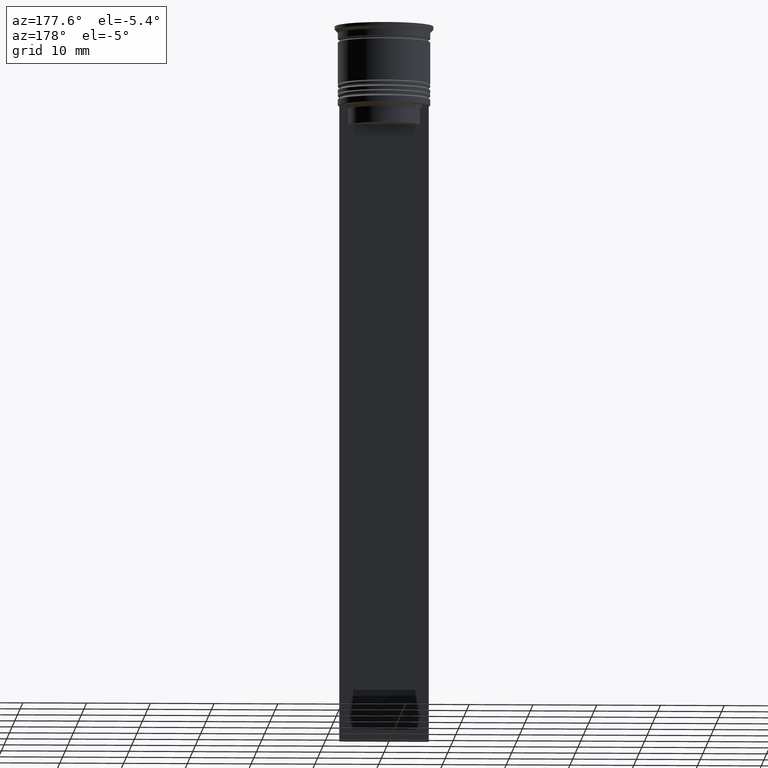
[diagram: clean part render]
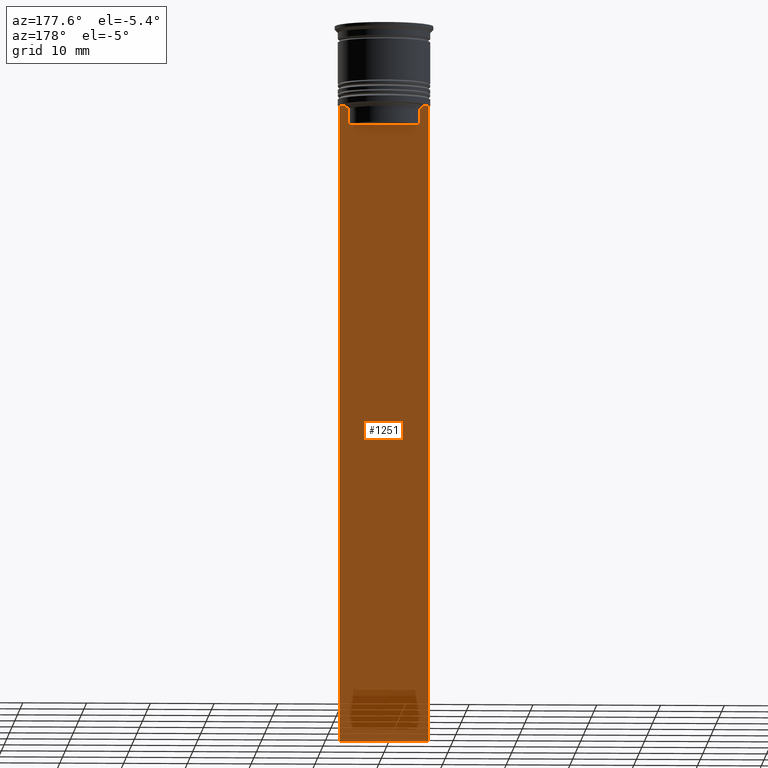
[diagram: same view with one face highlighted and labeled with its STEP entity id]
A machine part, auxiliary view. The second image highlights one B-rep face of the part: STEP entity #1251.
In plain terms, the highlighted planar face has unit normal (0, -1, -0).
Its self-contained STEP definition (entity closure, byte-faithful):
#27 = ORIENTED_EDGE ( 'NONE', *, *, #544, .T. ) ;
#85 = CARTESIAN_POINT ( 'NONE',  ( -6.129641098791995368, 0.4999999999999978351, -12.50000000000000000 ) ) ;
#102 = ORIENTED_EDGE ( 'NONE', *, *, #816, .F. ) ;
#148 = ORIENTED_EDGE ( 'NONE', *, *, #1028, .T. ) ;
#182 = AXIS2_PLACEMENT_3D ( 'NONE', #1326, #2005, #1634 ) ;
#212 = VERTEX_POINT ( 'NONE', #296 ) ;
#296 = CARTESIAN_POINT ( 'NONE',  ( -5.627832620112292794, 0.4999999999999978351, -13.00000000000000000 ) ) ;
#307 = B_SPLINE_CURVE_WITH_KNOTS ( 'NONE', 3,
 ( #2107, #673, #1595, #2121 ),
 .UNSPECIFIED., .F., .F.,
 ( 4, 4 ),
 ( 0.01045365750109871796, 0.01116204421161398619 ),
 .UNSPECIFIED. ) ;
#405 = CARTESIAN_POINT ( 'NONE',  ( -6.999999999999987566, 0.4999999999999980571, -12.50000000000000000 ) ) ;
#412 = CARTESIAN_POINT ( 'NONE',  ( 5.795128760752291441, 0.4999999999999978351, -12.83336023406855020 ) ) ;
#424 = VERTEX_POINT ( 'NONE', #85 ) ;
#433 = VERTEX_POINT ( 'NONE', #1524 ) ;
#447 = VERTEX_POINT ( 'NONE', #1339 ) ;
#454 = ORIENTED_EDGE ( 'NONE', *, *, #1538, .T. ) ;
#495 = LINE ( 'NONE', #1940, #2186 ) ;
#534 = EDGE_CURVE ( 'NONE', #447, #792, #495, .T. ) ;
#544 = EDGE_CURVE ( 'NONE', #212, #1795, #1801, .T. ) ;
#559 = EDGE_CURVE ( 'NONE', #2180, #735, #1033, .T. ) ;
#587 = CARTESIAN_POINT ( 'NONE',  ( 7.000000000000012434, 0.4999999999999978351, 1.535668847618198329 ) ) ;
#609 = LINE ( 'NONE', #1505, #2260 ) ;
#648 = CARTESIAN_POINT ( 'NONE',  ( 5.627832620112292794, 0.4999999999999978351, -13.00000000000000000 ) ) ;
#673 = CARTESIAN_POINT ( 'NONE',  ( -5.962396146966409738, 0.4999999999999978351, -12.66669130573587054 ) ) ;
#735 = VERTEX_POINT ( 'NONE', #1630 ) ;
#779 = DIRECTION ( 'NONE',  ( 0.000000000000000000, 0.000000000000000000, -1.000000000000000000 ) ) ;
#792 = VERTEX_POINT ( 'NONE', #2245 ) ;
#816 = EDGE_CURVE ( 'NONE', #1508, #433, #609, .T. ) ;
#834 = EDGE_CURVE ( 'NONE', #1508, #424, #960, .T. ) ;
#868 = ORIENTED_EDGE ( 'NONE', *, *, #2062, .T. ) ;
#874 = DIRECTION ( 'NONE',  ( -1.000000000000000000, 0.000000000000000000, 0.000000000000000000 ) ) ;
#960 = LINE ( 'NONE', #1520, #2301 ) ;
#968 = EDGE_CURVE ( 'NONE', #735, #447, #1307, .T. ) ;
#1018 = ORIENTED_EDGE ( 'NONE', *, *, #2295, .T. ) ;
#1028 = EDGE_CURVE ( 'NONE', #424, #212, #307, .T. ) ;
#1033 = LINE ( 'NONE', #1443, #1810 ) ;
#1048 = ORIENTED_EDGE ( 'NONE', *, *, #834, .T. ) ;
#1100 = ORIENTED_EDGE ( 'NONE', *, *, #968, .T. ) ;
#1121 = LINE ( 'NONE', #1266, #1516 ) ;
#1146 = VECTOR ( 'NONE', #779, 1000.000000000000000 ) ;
#1151 = CARTESIAN_POINT ( 'NONE',  ( 5.962396079681187011, 0.4999999999999978351, -12.66669137279835411 ) ) ;
#1165 = DIRECTION ( 'NONE',  ( 0.000000000000000000, 0.000000000000000000, -1.000000000000000000 ) ) ;
#1173 = VECTOR ( 'NONE', #1779, 1000.000000000000000 ) ;
#1182 = LINE ( 'NONE', #587, #1146 ) ;
#1241 = DIRECTION ( 'NONE',  ( 1.000000000000000000, 0.000000000000000000, 0.000000000000000000 ) ) ;
#1251 = ADVANCED_FACE ( 'NONE', ( #2024 ), #1988, .F. ) ;
#1253 = CARTESIAN_POINT ( 'NONE',  ( 7.000000000000012434, 0.4999999999999978351, -112.5000000000000000 ) ) ;
#1266 = CARTESIAN_POINT ( 'NONE',  ( 7.000000000000012434, 0.4999999999999978351, -112.5000000000000000 ) ) ;
#1269 = CARTESIAN_POINT ( 'NONE',  ( -5.627832620112292794, 0.4999999999999978351, 0.000000000000000000 ) ) ;
#1273 = ORIENTED_EDGE ( 'NONE', *, *, #559, .T. ) ;
#1307 = B_SPLINE_CURVE_WITH_KNOTS ( 'NONE', 3,
 ( #648, #412, #1151, #1535 ),
 .UNSPECIFIED., .F., .F.,
 ( 4, 4 ),
 ( 0.02651134470867373347, 0.02721991123504337307 ),
 .UNSPECIFIED. ) ;
#1326 = CARTESIAN_POINT ( 'NONE',  ( 7.000000000000012434, 0.4999999999999978351, 1.535668847618198329 ) ) ;
#1334 = DIRECTION ( 'NONE',  ( 1.000000000000000000, 0.000000000000000000, 0.000000000000000000 ) ) ;
#1339 = CARTESIAN_POINT ( 'NONE',  ( 6.129641098791995368, 0.4999999999999978351, -12.50000000000000000 ) ) ;
#1443 = CARTESIAN_POINT ( 'NONE',  ( 5.627832620112292794, 0.4999999999999978351, 0.000000000000000000 ) ) ;
#1483 = CARTESIAN_POINT ( 'NONE',  ( 5.627832620112292794, 0.4999999999999978351, -15.50000000000000000 ) ) ;
#1484 = LINE ( 'NONE', #2201, #1552 ) ;
#1505 = CARTESIAN_POINT ( 'NONE',  ( -6.999999999999987566, 0.4999999999999978351, 1.535668847618198329 ) ) ;
#1508 = VERTEX_POINT ( 'NONE', #405 ) ;
#1516 = VECTOR ( 'NONE', #874, 1000.000000000000000 ) ;
#1520 = CARTESIAN_POINT ( 'NONE',  ( 7.000000000000012434, 0.4999999999999978351, -12.50000000000000000 ) ) ;
#1524 = CARTESIAN_POINT ( 'NONE',  ( -6.999999999999987566, 0.4999999999999978351, -112.5000000000000000 ) ) ;
#1535 = CARTESIAN_POINT ( 'NONE',  ( 6.129641098791995368, 0.4999999999999978351, -12.50000000000000000 ) ) ;
#1538 = EDGE_CURVE ( 'NONE', #1795, #2180, #1484, .T. ) ;
#1552 = VECTOR ( 'NONE', #1334, 1000.000000000000000 ) ;
#1595 = CARTESIAN_POINT ( 'NONE',  ( -5.795128834036803234, 0.4999999999999978351, -12.83336016107156574 ) ) ;
#1614 = CARTESIAN_POINT ( 'NONE',  ( -5.627832620112292794, 0.4999999999999978351, -15.50000000000000000 ) ) ;
#1630 = CARTESIAN_POINT ( 'NONE',  ( 5.627832620112292794, 0.4999999999999978351, -13.00000000000000000 ) ) ;
#1634 = DIRECTION ( 'NONE',  ( 0.000000000000000000, 0.000000000000000000, -1.000000000000000000 ) ) ;
#1655 = EDGE_LOOP ( 'NONE', ( #1048, #148, #27, #454, #1273, #1100, #1830, #1018, #868, #102 ) ) ;
#1753 = DIRECTION ( 'NONE',  ( -0.000000000000000000, -0.000000000000000000, 1.000000000000000000 ) ) ;
#1779 = DIRECTION ( 'NONE',  ( 0.000000000000000000, 0.000000000000000000, -1.000000000000000000 ) ) ;
#1795 = VERTEX_POINT ( 'NONE', #1614 ) ;
#1801 = LINE ( 'NONE', #1269, #1173 ) ;
#1810 = VECTOR ( 'NONE', #1753, 1000.000000000000000 ) ;
#1830 = ORIENTED_EDGE ( 'NONE', *, *, #534, .T. ) ;
#1940 = CARTESIAN_POINT ( 'NONE',  ( 7.000000000000012434, 0.4999999999999978351, -12.50000000000000000 ) ) ;
#1988 = PLANE ( 'NONE',  #182 ) ;
#2005 = DIRECTION ( 'NONE',  ( 0.000000000000000000, -1.000000000000000000, -0.000000000000000000 ) ) ;
#2024 = FACE_OUTER_BOUND ( 'NONE', #1655, .T. ) ;
#2062 = EDGE_CURVE ( 'NONE', #2114, #433, #1121, .T. ) ;
#2107 = CARTESIAN_POINT ( 'NONE',  ( -6.129641098791995368, 0.4999999999999978351, -12.50000000000000000 ) ) ;
#2114 = VERTEX_POINT ( 'NONE', #1253 ) ;
#2121 = CARTESIAN_POINT ( 'NONE',  ( -5.627832620112292794, 0.4999999999999978351, -13.00000000000000000 ) ) ;
#2180 = VERTEX_POINT ( 'NONE', #1483 ) ;
#2186 = VECTOR ( 'NONE', #1241, 1000.000000000000000 ) ;
#2201 = CARTESIAN_POINT ( 'NONE',  ( 0.000000000000000000, 0.4999999999999978351, -15.50000000000000000 ) ) ;
#2235 = DIRECTION ( 'NONE',  ( 1.000000000000000000, 0.000000000000000000, 0.000000000000000000 ) ) ;
#2245 = CARTESIAN_POINT ( 'NONE',  ( 7.000000000000012434, 0.4999999999999978351, -12.50000000000000000 ) ) ;
#2260 = VECTOR ( 'NONE', #1165, 1000.000000000000000 ) ;
#2295 = EDGE_CURVE ( 'NONE', #792, #2114, #1182, .T. ) ;
#2301 = VECTOR ( 'NONE', #2235, 1000.000000000000000 ) ;